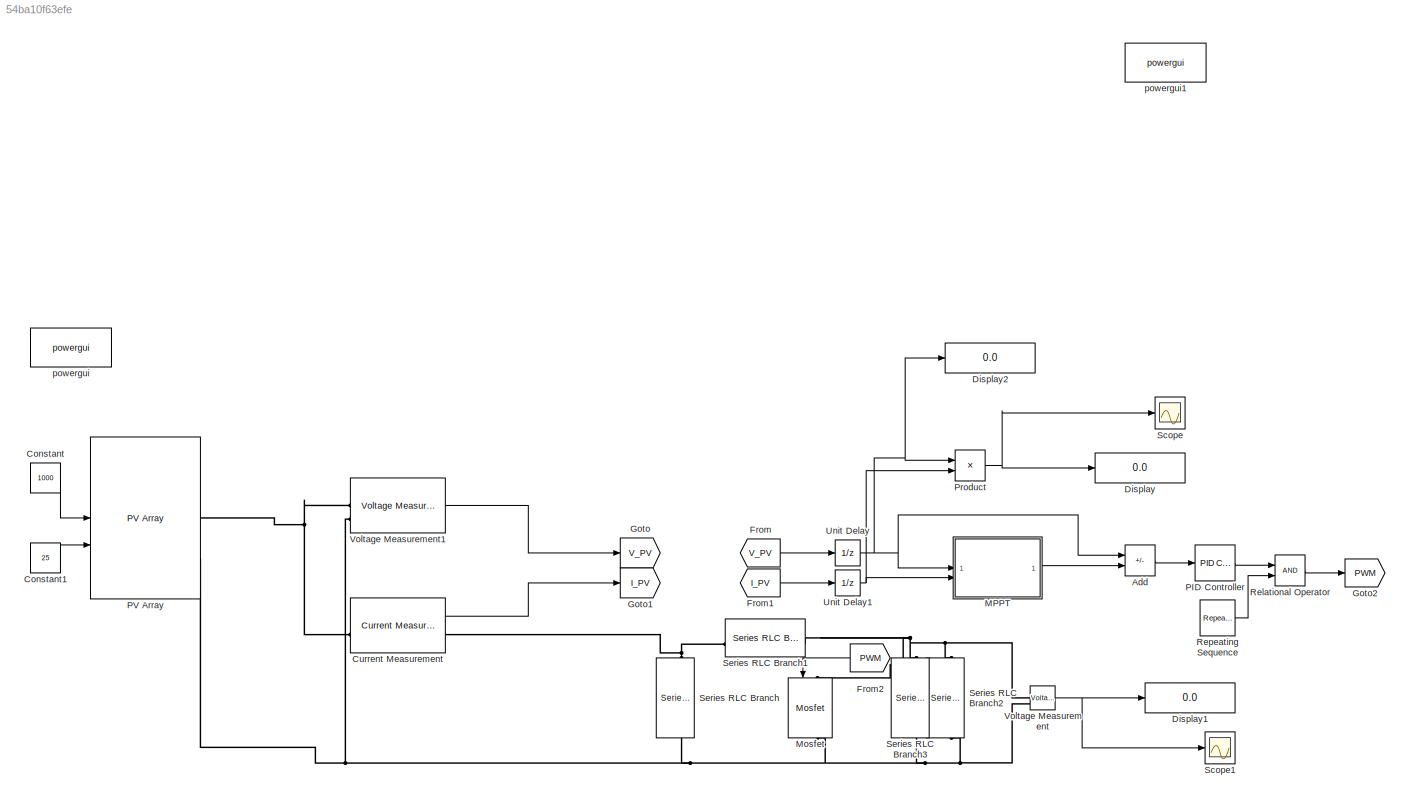
MODEL slx_54ba10f63efe
KIND model
CONFIG AbsTol = auto
CONFIG EnableMultiTasking = off
CONFIG FixedStep = auto
CONFIG MaxStep = auto
CONFIG MinStep = auto
CONFIG RelTol = 1e-3
CONFIG SampleTimeConstraint = Unconstrained
CONFIG SolverName = VariableStepAuto
CONFIG StartTime = 0.0
CONFIG StopTime = 10
BLOCK [Sum] Add
  IconShape = rectangular
  Inputs = +-
BLOCK [Constant] Constant
  Value = 1000
BLOCK [Constant] Constant1
  Value = 25
BLOCK [Reference] Current Measurement  REF=spsCurrentMeasurementLib/Current Measurement
  LibrarySourceBlock = sps_lib/Sensors and Measurements/Current Measurement
  SourceBlock = spsCurrentMeasurementLib/Current Measurement
  SourceType = Current Measurement
  UserDataPersistent = on
BLOCK [Display] Display
  Decimation = 1
BLOCK [Display] Display1
  Decimation = 1
BLOCK [Display] Display2
  Decimation = 1
BLOCK [From] From
  GotoTag = V_PV
BLOCK [From] From1
  GotoTag = I_PV
BLOCK [From] From2
  GotoTag = PWM
  NameLocation = top
BLOCK [Goto] Goto
  GotoTag = V_PV
BLOCK [Goto] Goto1
  GotoTag = I_PV
BLOCK [Goto] Goto2
  GotoTag = PWM
  NameLocation = top
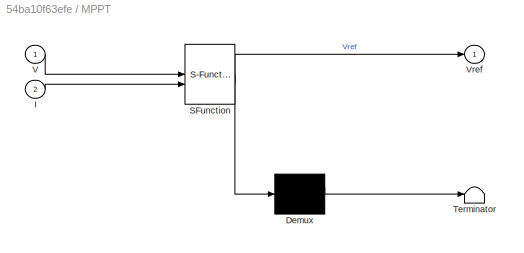
BLOCK [SubSystem] MPPT
  ErrorFcn = Stateflow.Translate.translate
  PermitHierarchicalResolution = ExplicitOnly
  SFBlockType = MATLAB Function
  TreatAsAtomicUnit = on
BLOCK [Demux] MPPT/ Demux 
  Outputs = 1
BLOCK [S-Function] MPPT/ SFunction 
  EnableBusSupport = on
  FunctionName = sf_sfun
  PortCounts = [2 2]
  SFcnIsStateOwnerBlock = off
  SFunctionDeploymentMode = off
  Tag = Stateflow S-Function 2
BLOCK [Terminator] MPPT/ Terminator 
BLOCK [Inport] MPPT/I
  Port = 2
BLOCK [Inport] MPPT/V
BLOCK [Outport] MPPT/Vref
BLOCK [Reference] Mosfet  REF=spsMosfetLib/Mosfet
  LibrarySourceBlock = sps_lib/Power Electronics/Mosfet
  NameLocation = left
  SourceBlock = spsMosfetLib/Mosfet
  SourceType = Mosfet
BLOCK [Reference] PID Controller  REF=slpidlib/PID Controller
  LibrarySourceBlock = simulink/Continuous/PID Controller
  SourceBlock = slpidlib/PID Controller
  SourceType = PID 1dof
BLOCK [Reference] PV Array  REF=spsPVArrayLib/PV Array
  LibrarySourceBlock = sps_lib/Sources/PV Array
  SourceBlock = spsPVArrayLib/PV Array
  SourceType = PV array
BLOCK [Product] Product
BLOCK [RelationalOperator] Relational Operator
  InputSameDT = off
  OutDataTypeStr = boolean
  RndMeth = Simplest
BLOCK [Reference] Repeating Sequence  REF=simulink/Sources/Repeating
Sequence
  SourceBlock = simulink/Sources/Repeating\nSequence
  SourceType = Repeating table
BLOCK [Scope] Scope
  Floating = off
  NumInputPorts = 1
  ScopeSpecificationString = Simulink.scopes.TimeScopeBlockCfg('CurrentConfiguration', extmgr.ConfigurationSet(extmgr.Configuration('Core','General UI',true),extmgr.Configuration('Core','Source UI',true),extmgr.Configuration('Sources','WiredSimulink',true),extmgr.Configuration('Visuals','Time Domain',true,'SerializedDisplays',{struct('MinYLimReal','-9566.23347','MaxYLimReal','86096.10127','YLabelReal','','MinYLimMag','  0.000...<+1426ch>
BLOCK [Scope] Scope1
  Floating = off
  NumInputPorts = 1
  ScopeSpecificationString = Simulink.scopes.TimeScopeBlockCfg('CurrentConfiguration', extmgr.ConfigurationSet(extmgr.Configuration('Core','General UI',true),extmgr.Configuration('Core','Source UI',true),extmgr.Configuration('Sources','WiredSimulink',true,'DataLoggingVariableName','ScopeData1'),extmgr.Configuration('Visuals','Time Domain',true,'SerializedDisplays',{struct('MinYLimReal','-13.50271','MaxYLimReal','121.52436','Y...<+1486ch>
BLOCK [Reference] Series RLC Branch  REF=spsSeriesRLCBranchLib/Series RLC Branch
  LibrarySourceBlock = sps_lib/Passives/Series RLC Branch
  NameLocation = left
  SourceBlock = spsSeriesRLCBranchLib/Series RLC Branch
  SourceType = Series RLC Branch
BLOCK [Reference] Series RLC Branch1  REF=spsSeriesRLCBranchLib/Series RLC Branch
  LibrarySourceBlock = sps_lib/Passives/Series RLC Branch
  NameLocation = top
  SourceBlock = spsSeriesRLCBranchLib/Series RLC Branch
  SourceType = Series RLC Branch
BLOCK [Reference] Series RLC Branch2  REF=spsSeriesRLCBranchLib/Series RLC Branch
  LibrarySourceBlock = sps_lib/Passives/Series RLC Branch
  NameLocation = left
  SourceBlock = spsSeriesRLCBranchLib/Series RLC Branch
  SourceType = Series RLC Branch
BLOCK [Reference] Series RLC Branch3  REF=spsSeriesRLCBranchLib/Series RLC Branch
  LibrarySourceBlock = sps_lib/Passives/Series RLC Branch
  NameLocation = left
  SourceBlock = spsSeriesRLCBranchLib/Series RLC Branch
  SourceType = Series RLC Branch
BLOCK [UnitDelay] Unit Delay
  HasFrameUpgradeWarning = on
  SampleTime = 1e-4
BLOCK [UnitDelay] Unit Delay1
  HasFrameUpgradeWarning = on
  SampleTime = 1e-4
BLOCK [Reference] Voltage Measurement  REF=spsVoltageMeasurementLib/Voltage Measurement
  LibrarySourceBlock = sps_lib/Sensors and Measurements/Voltage Measurement
  SourceBlock = spsVoltageMeasurementLib/Voltage Measurement
  SourceType = Voltage Measurement
  UserDataPersistent = on
BLOCK [Reference] Voltage Measurement1  REF=spsVoltageMeasurementLib/Voltage Measurement
  LibrarySourceBlock = sps_lib/Sensors and Measurements/Voltage Measurement
  SourceBlock = spsVoltageMeasurementLib/Voltage Measurement
  SourceType = Voltage Measurement
  UserDataPersistent = on
BLOCK [Reference] powergui  REF=sps_lib/powergui
  LibrarySourceBlock = sps_lib/powergui
  Priority = 1
  SourceBlock = sps_lib/powergui
  SourceType = PSB option menu block
BLOCK [Reference] powergui1  REF=sps_lib/powergui
  LibrarySourceBlock = sps_lib/powergui
  Priority = 1
  SourceBlock = sps_lib/powergui
  SourceType = PSB option menu block
LINE Add:1 -> PID Controller:1
LINE Constant1:1 -> PV Array:2
LINE Constant:1 -> PV Array:1
LINE Current Measurement:1 -> Goto1:1
LINE From1:1 -> Unit Delay1:1
LINE From2:1 -> Mosfet:1
LINE From:1 -> Unit Delay:1
LINE MPPT:1 -> Add:2
LINE PID Controller:1 -> Relational Operator:1
NET Product:1 -> Display:1, Scope:1
LINE Relational Operator:1 -> Goto2:1
LINE Repeating Sequence:1 -> Relational Operator:2
NET Unit Delay1:1 -> MPPT:2, Product:2
NET Unit Delay:1 -> Add:1, Display2:1, MPPT:1, Product:1
LINE Voltage Measurement1:1 -> Goto:1
NET Voltage Measurement:1 -> Display1:1, Scope1:1
PNET net1: Current Measurement:LConn1 -- PV Array:RConn1 -- Voltage Measurement1:LConn1
PNET net2: Current Measurement:RConn1 -- Series RLC Branch1:RConn1 -- Series RLC Branch:LConn1
PNET net3: Mosfet:LConn1 -- Series RLC Branch1:LConn1 -- Series RLC Branch2:LConn1 -- Series RLC Branch3:LConn1 -- Voltage Measurement:LConn1
PNET net4: Mosfet:RConn1 -- PV Array:RConn2 -- Series RLC Branch2:RConn1 -- Series RLC Branch3:RConn1 -- Series RLC Branch:RConn1 -- Voltage Measurement1:LConn2 -- Voltage Measurement:LConn2
note: NET lines group one-source signal fan-out (src -> all destinations, sorted); 1:1 wires keep LINE; PNET lines group multi-terminal physical nets as a canonical sorted terminal list (undirected conserving connections); 2-terminal nets keep the pairwise PLINE form
CHART MPPT states=1 transitions=1
  STATE_LABEL 'eML_blk_kernel()'
  STATE_LABEL "SCRIPT:\nfunction Vref = MPPT(V,I)\n\nVrefmax = 450;\nVrefmin = 0;\nVrefinit = 400;\ndeltaVref =1;\npersistent Volt Polt Vreffolt;\n\ndataType = 'double';\n\nif isempty (Volt)\n    Volt = 0;\n    Polt = 0;\n    Vreffolt = Vrefinit;\nend\n\nP=V*I;\ndV = V-Volt;\ndP = P-Polt;\n\nif dP ~= 0\n    if dP < 0\n        if dV < 0\n            Vref = Vreffolt + deltaVref;\n        else\n            Vref = Vreffolt - deltaVref;\n     ...<+281ch>"
CHART  states=0 transitions=0
